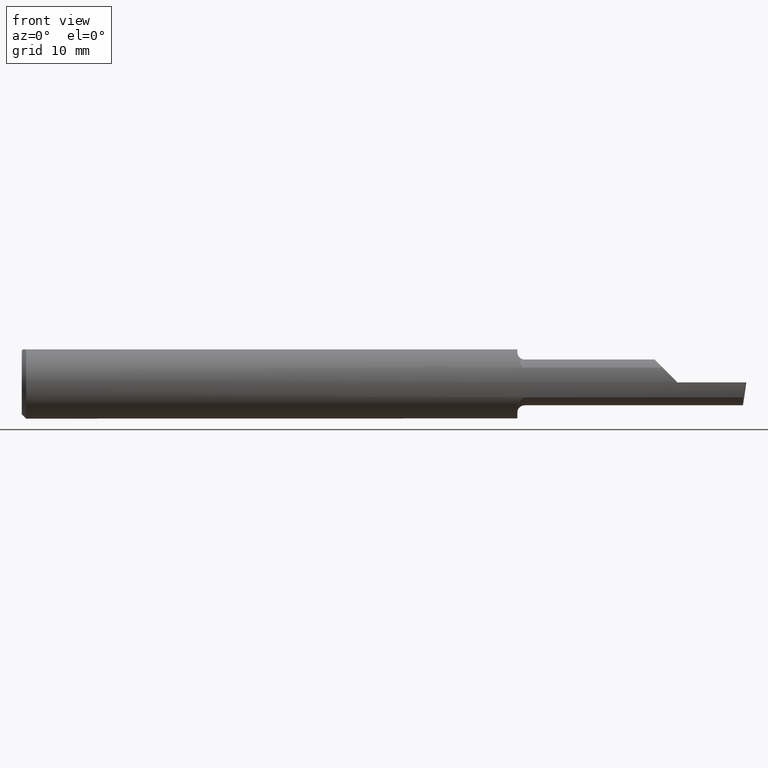
[diagram: clean part render]
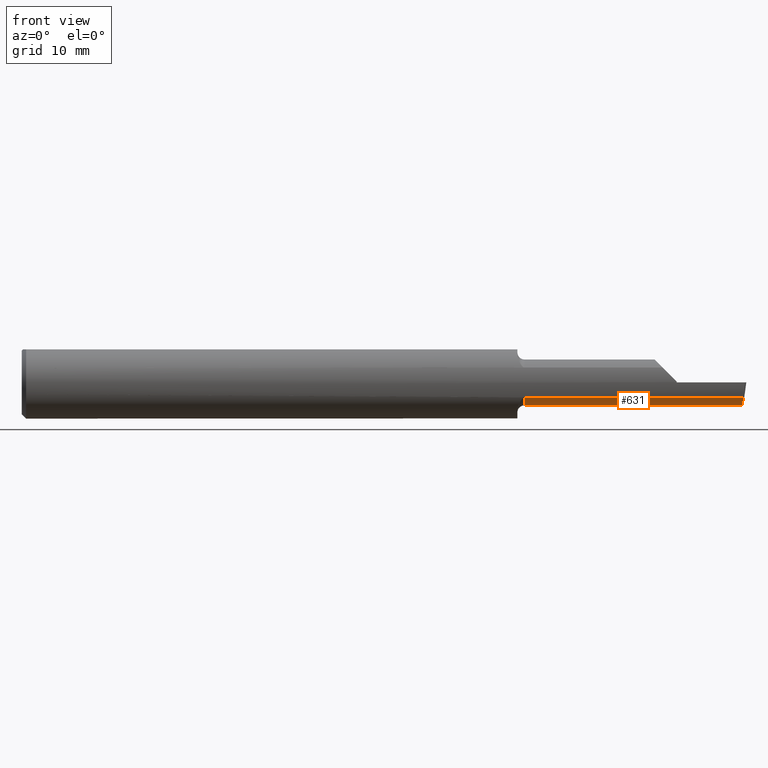
[diagram: same view with one face highlighted and labeled with its STEP entity id]
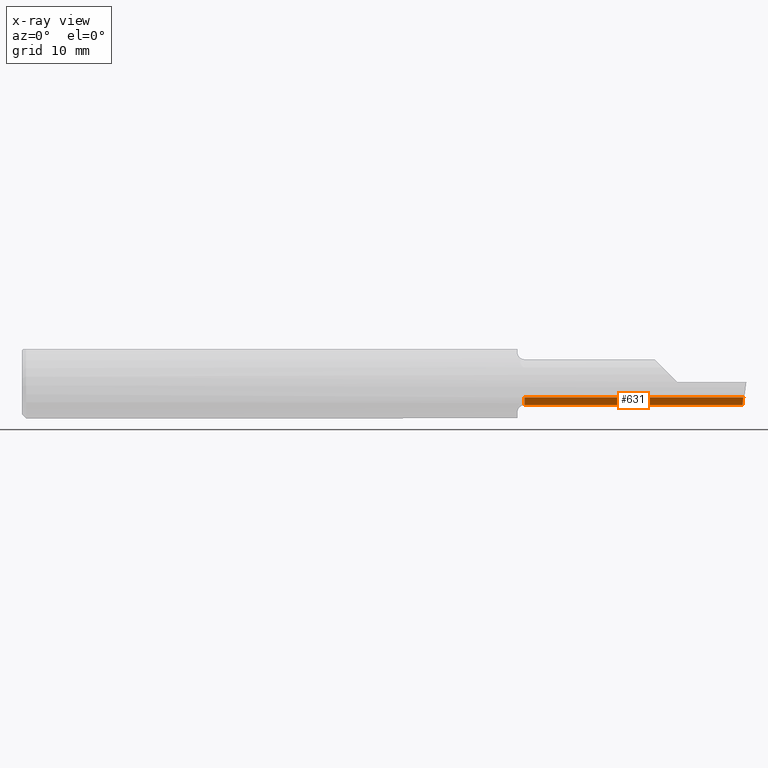
[diagram: x-ray of the same camera — body ghosted, the highlighted face saturated]
A machine part, front view. The second image highlights one B-rep face of the part: STEP entity #631.
The next image is the same camera in x-ray: the body ghosted, the highlighted face saturated — about 0% of this face is hidden behind the body in this view.
In plain terms, the highlighted cylindrical surface (edge-blend (fillet) strip) has radius 2.0066 mm, axis along (-1, -0, -0).
Its self-contained STEP definition (entity closure, byte-faithful):
#11 = CARTESIAN_POINT ( 'NONE',  ( 2.487477084348818757, -0.05385000000000000203, -0.07900000000000000078 ) ) ;
#24 = VECTOR ( 'NONE', #165, 39.37007874015748143 ) ;
#62 = DIRECTION ( 'NONE',  ( 0.000000000000000000, 0.000000000000000000, -1.000000000000000000 ) ) ;
#67 = VECTOR ( 'NONE', #647, 39.37007874015748143 ) ;
#105 = CARTESIAN_POINT ( 'NONE',  ( 2.487477084348818757, -0.05385000000000000203, -0.07900000000000000078 ) ) ;
#142 = DIRECTION ( 'NONE',  ( -1.000000000000000000, -0.000000000000000000, -0.000000000000000000 ) ) ;
#143 = AXIS2_PLACEMENT_3D ( 'NONE', #269, #1086, #62 ) ;
#159 = CARTESIAN_POINT ( 'NONE',  ( 2.489267570196207480, -0.1137079387186629154, -0.05155605854167671920 ) ) ;
#165 = DIRECTION ( 'NONE',  ( -1.000000000000000000, -0.000000000000000000, -0.000000000000000000 ) ) ;
#185 = DIRECTION ( 'NONE',  ( -1.000000000000000000, -0.000000000000000000, -0.000000000000000000 ) ) ;
#225 = FACE_OUTER_BOUND ( 'NONE', #892, .T. ) ;
#269 = CARTESIAN_POINT ( 'NONE',  ( 1.734999999999999876, -0.05385000000000000897, 0.000000000000000000 ) ) ;
#270 = EDGE_CURVE ( 'NONE', #803, #1109, #1268, .T. ) ;
#322 = CARTESIAN_POINT ( 'NONE',  ( 1.734999999999999876, -0.05385000000000000203, -0.07900000000000000078 ) ) ;
#332 = EDGE_CURVE ( 'NONE', #695, #451, #483, .T. ) ;
#337 = AXIS2_PLACEMENT_3D ( 'NONE', #735, #142, #1124 ) ;
#387 = CARTESIAN_POINT ( 'NONE',  ( 1.709999999999999964, -0.05385000000000000203, -0.07900000000000000078 ) ) ;
#398 = ORIENTED_EDGE ( 'NONE', *, *, #1013, .F. ) ;
#413 = CARTESIAN_POINT ( 'NONE',  ( 2.489267570196207480, -0.1137079387186629154, -0.05155605854167671920 ) ) ;
#415 = CARTESIAN_POINT ( 'NONE',  ( 2.486860597208458756, -0.07721721039523751773, -0.07900000000000000078 ) ) ;
#451 = VERTEX_POINT ( 'NONE', #105 ) ;
#457 = VERTEX_POINT ( 'NONE', #696 ) ;
#483 =( BOUNDED_CURVE ( )  B_SPLINE_CURVE ( 3, ( #413, #999, #415, #11 ),
 .UNSPECIFIED., .F., .F. ) 
 B_SPLINE_CURVE_WITH_KNOTS ( ( 4, 4 ),
 ( 5.635061564218492691, 6.494836076230760646 ),
 .UNSPECIFIED. ) 
 CURVE ( )  GEOMETRIC_REPRESENTATION_ITEM ( )  RATIONAL_B_SPLINE_CURVE ( ( 1.000000000000000000, 0.9393418290513008140, 0.9393418290513008140, 1.000000000000000000 ) ) 
 REPRESENTATION_ITEM ( '' )  );
#555 = LINE ( 'NONE', #387, #879 ) ;
#585 = ORIENTED_EDGE ( 'NONE', *, *, #332, .F. ) ;
#586 = LINE ( 'NONE', #662, #24 ) ;
#603 = ORIENTED_EDGE ( 'NONE', *, *, #1252, .F. ) ;
#631 = ADVANCED_FACE ( 'NONE', ( #225 ), #1017, .T. ) ;
#647 = DIRECTION ( 'NONE',  ( -1.000000000000000000, -0.000000000000000000, -0.000000000000000000 ) ) ;
#662 = CARTESIAN_POINT ( 'NONE',  ( 2.000000000000000000, -0.1137079387186629154, -0.05155605854167669838 ) ) ;
#692 = EDGE_CURVE ( 'NONE', #695, #803, #586, .T. ) ;
#695 = VERTEX_POINT ( 'NONE', #159 ) ;
#696 = CARTESIAN_POINT ( 'NONE',  ( 2.290000000000000036, -0.05385000000000000203, -0.07900000000000000078 ) ) ;
#735 = CARTESIAN_POINT ( 'NONE',  ( 1.709999999999999964, -0.05385000000000000897, 0.000000000000000000 ) ) ;
#789 = ORIENTED_EDGE ( 'NONE', *, *, #692, .T. ) ;
#803 = VERTEX_POINT ( 'NONE', #1002 ) ;
#826 = LINE ( 'NONE', #1233, #67 ) ;
#879 = VECTOR ( 'NONE', #185, 39.37007874015748143 ) ;
#892 = EDGE_LOOP ( 'NONE', ( #603, #398, #585, #789, #1142 ) ) ;
#999 = CARTESIAN_POINT ( 'NONE',  ( 2.487495966141617831, -0.09845830242635222884, -0.06926128699565431424 ) ) ;
#1002 = CARTESIAN_POINT ( 'NONE',  ( 1.734999999999999876, -0.1137079387186629154, -0.05155605854167669838 ) ) ;
#1013 = EDGE_CURVE ( 'NONE', #451, #457, #826, .T. ) ;
#1017 = CYLINDRICAL_SURFACE ( 'NONE', #337, 0.07900000000000000078 ) ;
#1086 = DIRECTION ( 'NONE',  ( 1.000000000000000000, 0.000000000000000000, 0.000000000000000000 ) ) ;
#1109 = VERTEX_POINT ( 'NONE', #322 ) ;
#1124 = DIRECTION ( 'NONE',  ( 0.000000000000000000, 0.000000000000000000, 1.000000000000000000 ) ) ;
#1142 = ORIENTED_EDGE ( 'NONE', *, *, #270, .T. ) ;
#1233 = CARTESIAN_POINT ( 'NONE',  ( 2.500000000000002220, -0.05385000000000000203, -0.07900000000000000078 ) ) ;
#1252 = EDGE_CURVE ( 'NONE', #457, #1109, #555, .T. ) ;
#1268 = CIRCLE ( 'NONE', #143, 0.07900000000000000078 ) ;